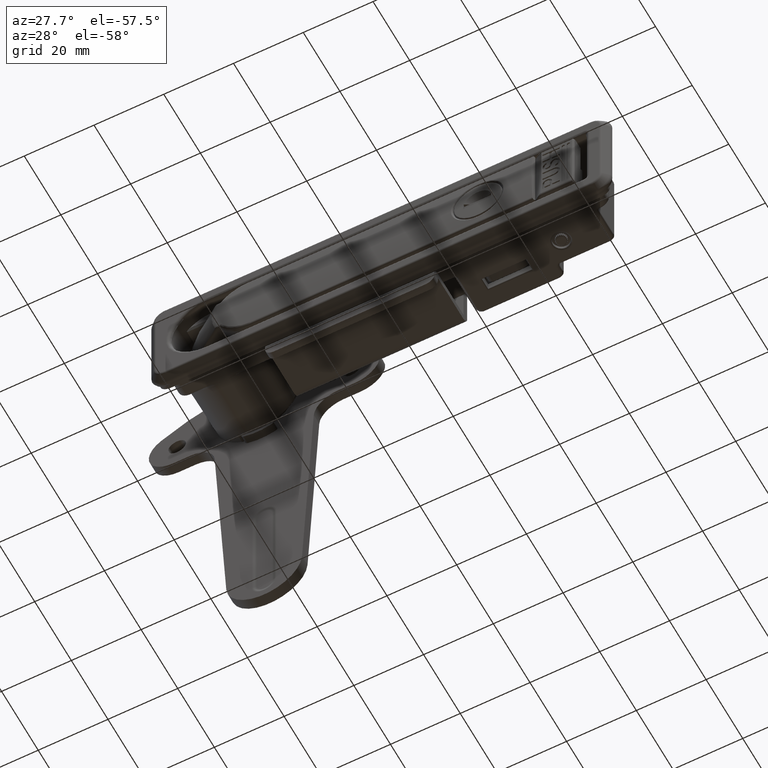
[diagram: clean part render]
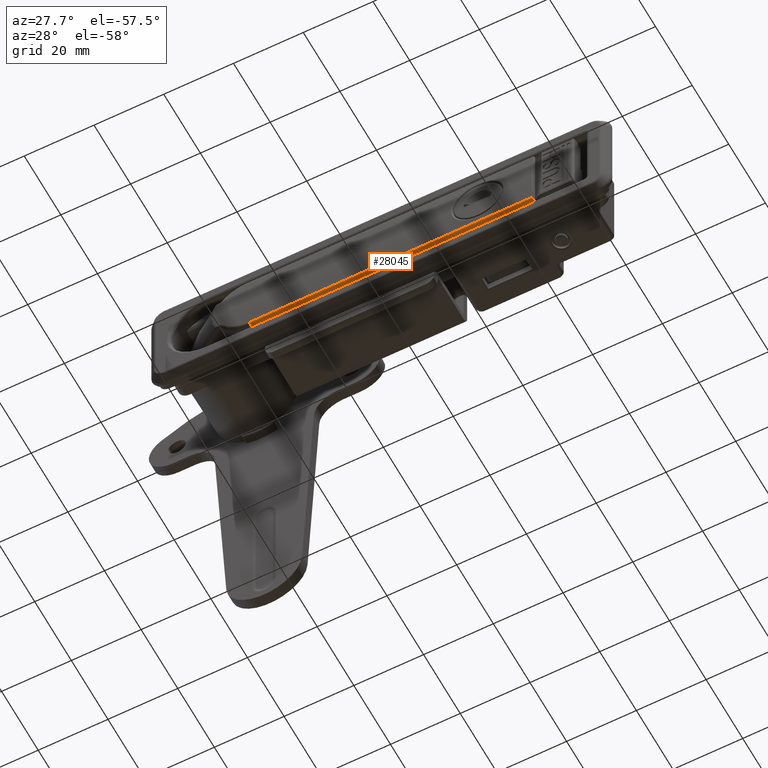
[diagram: same view with one face highlighted and labeled with its STEP entity id]
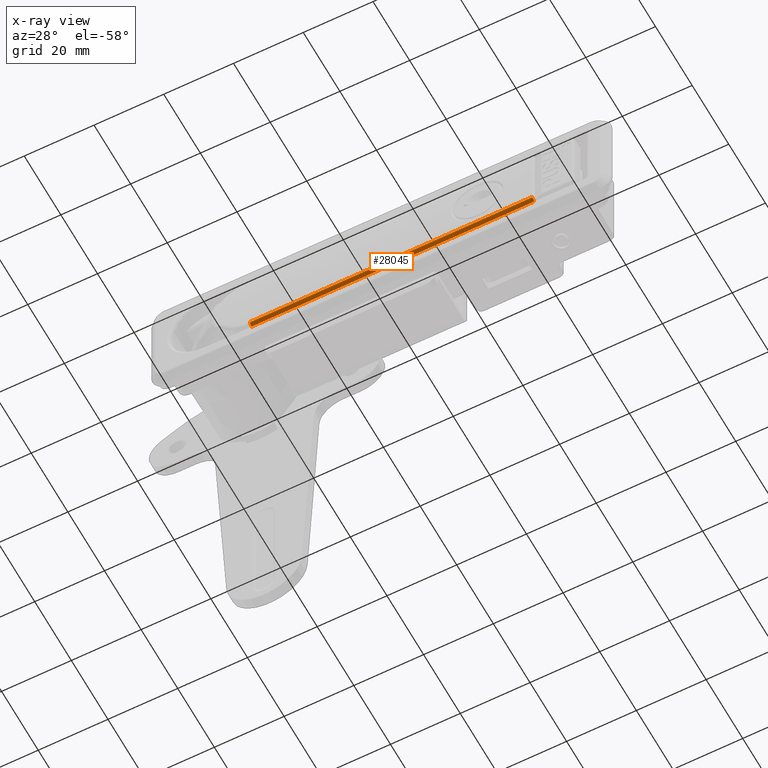
[diagram: x-ray of the same camera — body ghosted, the highlighted face saturated]
A machine part, auxiliary view. The second image highlights one B-rep face of the part: STEP entity #28045.
The next image is the same camera in x-ray: the body ghosted, the highlighted face saturated — about 0% of this face is hidden behind the body in this view.
In plain terms, the highlighted cylindrical surface (edge-blend (fillet) strip) has radius 0.95 mm, axis along (-1, 0, 0.0003).
Its self-contained STEP definition (entity closure, byte-faithful):
#1418=CIRCLE('',#29955,0.9500000012338);
#2671=CYLINDRICAL_SURFACE('',#30342,0.95);
#3647=FACE_OUTER_BOUND('',#5444,.T.);
#5444=EDGE_LOOP('',(#21289,#21290,#21291,#21292,#21293,#21294));
#6993=B_SPLINE_CURVE_WITH_KNOTS('',3,(#58467,#58468,#58469,#58470,#58471,
#58472),.UNSPECIFIED.,.F.,.F.,(4,1,1,4),(0.0231588113387206,0.3333333333333,
0.6666666666667,1.),.UNSPECIFIED.);
#6994=B_SPLINE_CURVE_WITH_KNOTS('',3,(#58474,#58475,#58476,#58477,#58478,
#58479),.UNSPECIFIED.,.F.,.F.,(4,2,4),(-0.0528626499624732,-0.0327104641964702,
-0.00100008901211855),.UNSPECIFIED.);
#6995=B_SPLINE_CURVE_WITH_KNOTS('',3,(#58480,#58481,#58482,#58483,#58484,
#58485,#58486,#58487),.UNSPECIFIED.,.F.,.F.,(4,2,2,4),(0.0602818870562305,
0.080897140155888,0.118115401821701,0.155333663487515),.UNSPECIFIED.);
#7850=LINE('',#55564,#9895);
#7918=LINE('',#58463,#9963);
#9895=VECTOR('',#34671,80.9947938806172);
#9963=VECTOR('',#35077,80.9137442014677);
#12063=VERTEX_POINT('',#52385);
#12065=VERTEX_POINT('',#52497);
#12244=VERTEX_POINT('',#55563);
#12339=VERTEX_POINT('',#58462);
#12340=VERTEX_POINT('',#58466);
#12341=VERTEX_POINT('',#58473);
#15100=EDGE_CURVE('',#12063,#12065,#1418,.T.);
#15395=EDGE_CURVE('',#12244,#12065,#7850,.T.);
#15595=EDGE_CURVE('',#12339,#12063,#7918,.T.);
#15597=EDGE_CURVE('',#12340,#12339,#6993,.T.);
#15598=EDGE_CURVE('',#12341,#12340,#6994,.T.);
#15599=EDGE_CURVE('',#12341,#12244,#6995,.T.);
#21289=ORIENTED_EDGE('',*,*,#15395,.T.);
#21290=ORIENTED_EDGE('',*,*,#15100,.F.);
#21291=ORIENTED_EDGE('',*,*,#15595,.F.);
#21292=ORIENTED_EDGE('',*,*,#15597,.F.);
#21293=ORIENTED_EDGE('',*,*,#15598,.F.);
#21294=ORIENTED_EDGE('',*,*,#15599,.T.);
#28045=ADVANCED_FACE('',(#3647),#2671,.T.);
#29955=AXIS2_PLACEMENT_3D('',#52498,#34127,#34128);
#30342=AXIS2_PLACEMENT_3D('',#58465,#35080,#35081);
#34127=DIRECTION('center_axis',(1.,1.012373540863E-9,-9.68047839749E-11));
#34128=DIRECTION('ref_axis',(9.68045084523908E-11,2.7215498474439E-7,0.999999999999963));
#34671=DIRECTION('',(1.,-5.716697363203E-10,5.069355244295E-11));
#35077=DIRECTION('',(1.,0.,-4.449004246571E-9));
#35080=DIRECTION('center_axis',(1.,0.,0.));
#35081=DIRECTION('ref_axis',(0.,0.,1.));
#52385=CARTESIAN_POINT('',(30.1778065817777,1.36595064454687,10.3499994825985));
#52497=CARTESIAN_POINT('',(30.1778065825072,0.419663596362932,9.48391083670849));
#52498=CARTESIAN_POINT('Origin',(30.17780658173,1.365950386,9.399998649136));
#55563=CARTESIAN_POINT('',(-50.81698729811,0.4196637044015,9.483910827128));
#55564=CARTESIAN_POINT('',(-50.81698729811,0.4196637044015,9.483910827128));
#58462=CARTESIAN_POINT('',(-50.73593761969,1.365950644547,10.35));
#58463=CARTESIAN_POINT('',(-50.73593761969,1.365950644547,10.35));
#58465=CARTESIAN_POINT('Origin',(-184.869,1.365950644547,9.4));
#58466=CARTESIAN_POINT('',(-50.7552439696168,1.35741162285248,10.3499602094314));
#58467=CARTESIAN_POINT('Ctrl Pts',(-50.753581940725,1.35620716553306,10.3499676528669));
#58468=CARTESIAN_POINT('Ctrl Pts',(-50.7516632714154,1.35717116679027,10.3499744477905));
#58469=CARTESIAN_POINT('Ctrl Pts',(-50.7501135279326,1.36119613865549,10.3499843026006));
#58470=CARTESIAN_POINT('Ctrl Pts',(-50.74236266895,1.362946393192,10.34999758261));
#58471=CARTESIAN_POINT('Ctrl Pts',(-50.73816950492,1.365022514934,10.35));
#58472=CARTESIAN_POINT('Ctrl Pts',(-50.73593761969,1.365950644547,10.35));
#58473=CARTESIAN_POINT('',(-51.06444165097,0.919857958827,10.2387498529));
#58474=CARTESIAN_POINT('Ctrl Pts',(-51.0644416509734,0.919857958826916,
10.2387498529043));
#58475=CARTESIAN_POINT('Ctrl Pts',(-51.0290882590473,0.973624026278559,
10.2673455651385));
#58476=CARTESIAN_POINT('Ctrl Pts',(-50.9900759489355,1.03041000133262,10.2908129603873));
#58477=CARTESIAN_POINT('Ctrl Pts',(-50.8858070987593,1.17878966504721,10.3362006682261));
#58478=CARTESIAN_POINT('Ctrl Pts',(-50.8182867792916,1.27182162920196,10.3492304216084));
#58479=CARTESIAN_POINT('Ctrl Pts',(-50.7558883978902,1.35783398152939,10.349965325568));
#58480=CARTESIAN_POINT('Ctrl Pts',(-51.064441650969,0.91985795882562,10.2387498529036));
#58481=CARTESIAN_POINT('Ctrl Pts',(-51.0331319364689,0.862440528353335,
10.2082121476773));
#58482=CARTESIAN_POINT('Ctrl Pts',(-51.0040736914605,0.808394604094652,
10.1718036657455));
#58483=CARTESIAN_POINT('Ctrl Pts',(-50.9313252003673,0.670991588171918,
10.0578230838983));
#58484=CARTESIAN_POINT('Ctrl Pts',(-50.8889704981896,0.588116277320108,
9.96014195878776));
#58485=CARTESIAN_POINT('Ctrl Pts',(-50.8317679862155,0.467869362403695,
9.73501542189793));
#58486=CARTESIAN_POINT('Ctrl Pts',(-50.8169872981037,0.430621652192774,
9.60748680940597));
#58487=CARTESIAN_POINT('Ctrl Pts',(-50.8169872981037,0.419663704401072,
9.48391082712771));